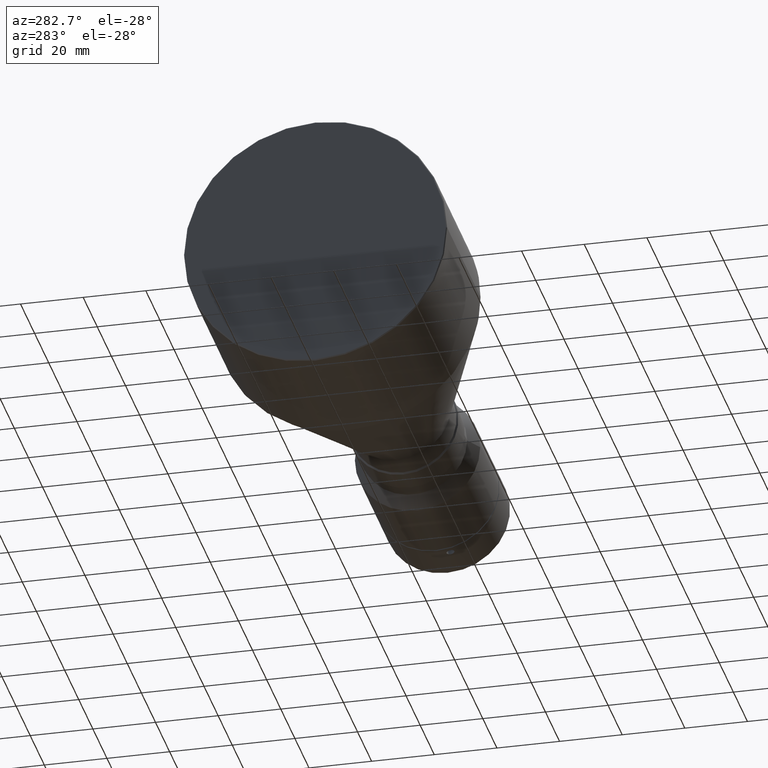
[diagram: clean part render]
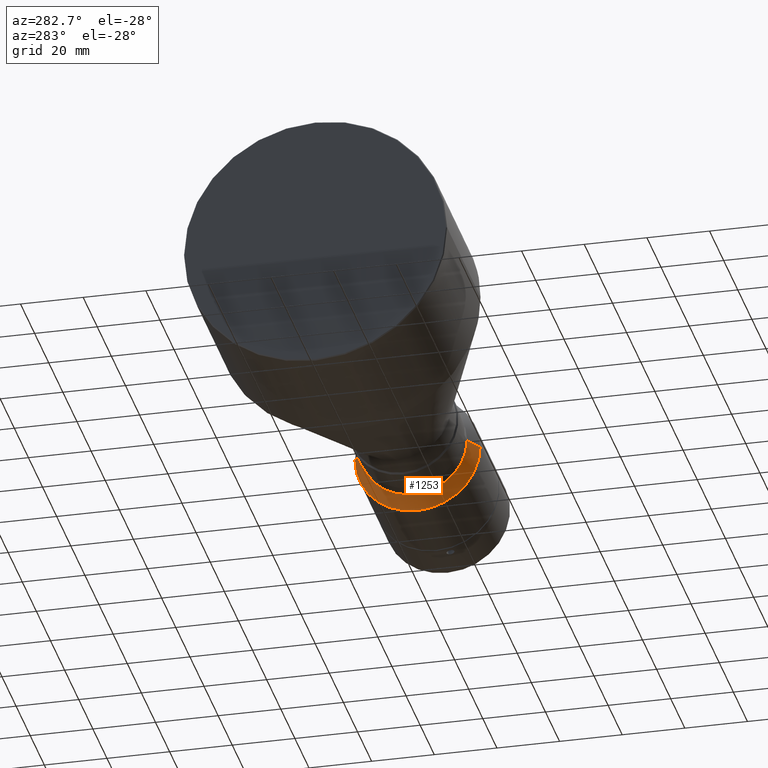
[diagram: same view with one face highlighted and labeled with its STEP entity id]
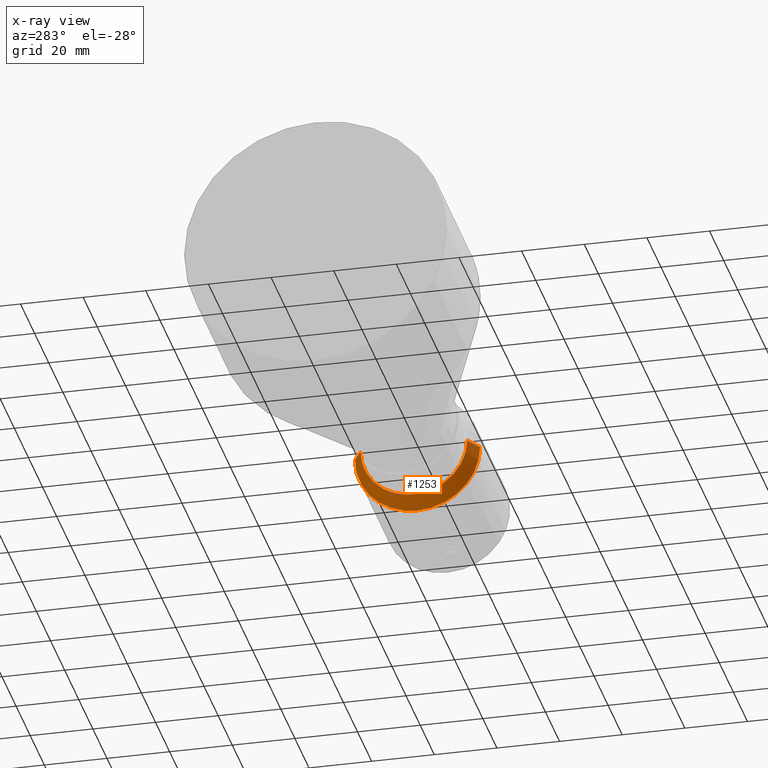
[diagram: x-ray of the same camera — body ghosted, the highlighted face saturated]
A machine part, auxiliary view. The second image highlights one B-rep face of the part: STEP entity #1253.
The next image is the same camera in x-ray: the body ghosted, the highlighted face saturated — about 0% of this face is hidden behind the body in this view.
In plain terms, the highlighted conical surface has half-angle 30 deg.
Its self-contained STEP definition (entity closure, byte-faithful):
#4 = ORIENTED_EDGE ( 'NONE', *, *, #1367, .T. ) ;
#48 = CARTESIAN_POINT ( 'NONE',  ( 42.29999999999999000, 17.00000000000000000, 0.0000000000000000000 ) ) ;
#83 = VECTOR ( 'NONE', #1260, 1000.000000000000100 ) ;
#110 = AXIS2_PLACEMENT_3D ( 'NONE', #377, #623, #165 ) ;
#114 = CIRCLE ( 'NONE', #1263, 20.00000000000000000 ) ;
#164 = CARTESIAN_POINT ( 'NONE',  ( 47.49615242300001200, 0.0000000000000000000, 0.0000000000000000000 ) ) ;
#165 = DIRECTION ( 'NONE',  ( -4.081702296416016500E-016, 0.0000000000000000000, -1.000000000000000000 ) ) ;
#226 = LINE ( 'NONE', #589, #1497 ) ;
#266 = CARTESIAN_POINT ( 'NONE',  ( 42.29999999999999700, 0.0000000000000000000, 0.0000000000000000000 ) ) ;
#338 = VERTEX_POINT ( 'NONE', #941 ) ;
#377 = CARTESIAN_POINT ( 'NONE',  ( 42.30000000000000400, 0.0000000000000000000, 0.0000000000000000000 ) ) ;
#397 = CARTESIAN_POINT ( 'NONE',  ( 42.30000000000000400, -17.00000000000000000, 0.0000000000000000000 ) ) ;
#578 = ORIENTED_EDGE ( 'NONE', *, *, #1474, .T. ) ;
#589 = CARTESIAN_POINT ( 'NONE',  ( 42.30000000000000400, -17.00000000000000000, 2.081899558550500300E-015 ) ) ;
#591 = EDGE_LOOP ( 'NONE', ( #1056, #696, #578, #996, #4 ) ) ;
#622 = FACE_OUTER_BOUND ( 'NONE', #591, .T. ) ;
#623 = DIRECTION ( 'NONE',  ( -1.000000000000000000, -0.0000000000000000000, -0.0000000000000000000 ) ) ;
#658 = CARTESIAN_POINT ( 'NONE',  ( 47.49615242300001200, 20.00000000000001100, 0.0000000000000000000 ) ) ;
#672 = EDGE_CURVE ( 'NONE', #338, #707, #962, .T. ) ;
#695 = VERTEX_POINT ( 'NONE', #658 ) ;
#696 = ORIENTED_EDGE ( 'NONE', *, *, #672, .F. ) ;
#707 = VERTEX_POINT ( 'NONE', #397 ) ;
#728 = LINE ( 'NONE', #48, #83 ) ;
#756 = EDGE_CURVE ( 'NONE', #695, #806, #1579, .T. ) ;
#757 = AXIS2_PLACEMENT_3D ( 'NONE', #266, #1251, #1242 ) ;
#806 = VERTEX_POINT ( 'NONE', #1571 ) ;
#815 = CARTESIAN_POINT ( 'NONE',  ( 47.49615242300001200, -19.99999999999999600, 2.449293598294706500E-015 ) ) ;
#877 = VERTEX_POINT ( 'NONE', #815 ) ;
#894 = CARTESIAN_POINT ( 'NONE',  ( 47.49615242300001200, 0.0000000000000000000, 0.0000000000000000000 ) ) ;
#941 = CARTESIAN_POINT ( 'NONE',  ( 42.30000000000000400, 17.00000000000000000, 2.081899558550500300E-015 ) ) ;
#962 = CIRCLE ( 'NONE', #110, 17.00000000000000000 ) ;
#996 = ORIENTED_EDGE ( 'NONE', *, *, #756, .T. ) ;
#1004 = EDGE_CURVE ( 'NONE', #707, #877, #226, .T. ) ;
#1024 = DIRECTION ( 'NONE',  ( -1.000000000000000000, 0.0000000000000000000, 0.0000000000000000000 ) ) ;
#1056 = ORIENTED_EDGE ( 'NONE', *, *, #1004, .F. ) ;
#1073 = DIRECTION ( 'NONE',  ( 0.8660254037966627100, -0.4999999999788273300, 6.123233995477477300E-017 ) ) ;
#1156 = DIRECTION ( 'NONE',  ( -3.469446951953614200E-016, 0.0000000000000000000, 1.000000000000000000 ) ) ;
#1242 = DIRECTION ( 'NONE',  ( -4.081702296416016500E-016, 1.000000000000000000, 0.0000000000000000000 ) ) ;
#1251 = DIRECTION ( 'NONE',  ( 1.000000000000000000, 2.040851148208008200E-016, -0.0000000000000000000 ) ) ;
#1253 = ADVANCED_FACE ( 'NONE', ( #622 ), #1342, .T. ) ;
#1256 = DIRECTION ( 'NONE',  ( -1.000000000000000000, 0.0000000000000000000, 0.0000000000000000000 ) ) ;
#1260 = DIRECTION ( 'NONE',  ( 0.8660254037966626000, 0.4999999999788276600, 0.0000000000000000000 ) ) ;
#1263 = AXIS2_PLACEMENT_3D ( 'NONE', #164, #1256, #1156 ) ;
#1290 = AXIS2_PLACEMENT_3D ( 'NONE', #894, #1024, #1530 ) ;
#1342 = CONICAL_SURFACE ( 'NONE', #757, 17.00000000000000000, 0.5235987755738509300 ) ;
#1367 = EDGE_CURVE ( 'NONE', #806, #877, #114, .T. ) ;
#1474 = EDGE_CURVE ( 'NONE', #338, #695, #728, .T. ) ;
#1497 = VECTOR ( 'NONE', #1073, 999.9999999999998900 ) ;
#1530 = DIRECTION ( 'NONE',  ( -3.469446951953614200E-016, 0.0000000000000000000, 1.000000000000000000 ) ) ;
#1571 = CARTESIAN_POINT ( 'NONE',  ( 47.49615242300001200, 2.449293598294706500E-015, -20.00000000000000000 ) ) ;
#1579 = CIRCLE ( 'NONE', #1290, 20.00000000000000000 ) ;